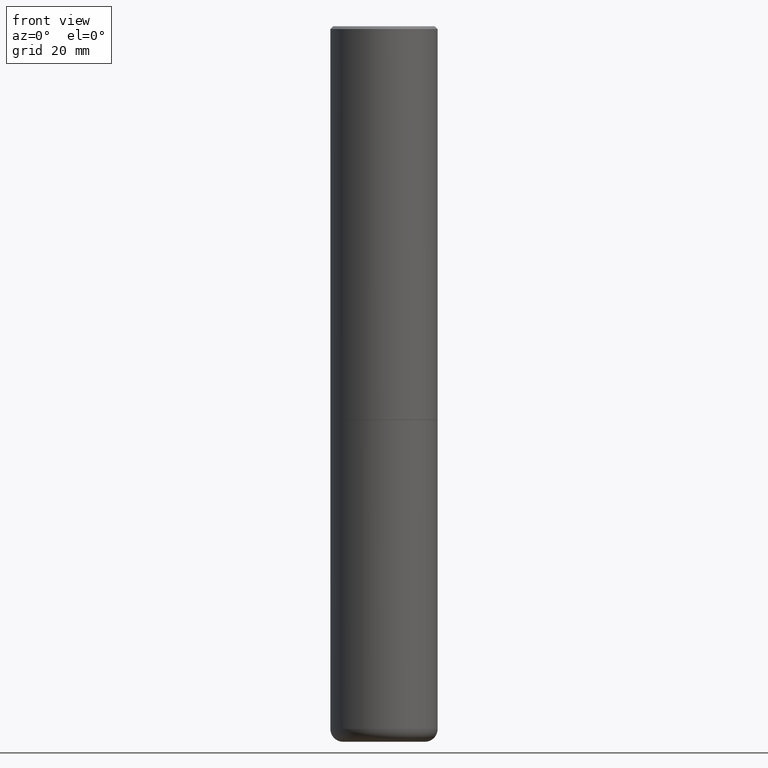
[diagram: clean part render]
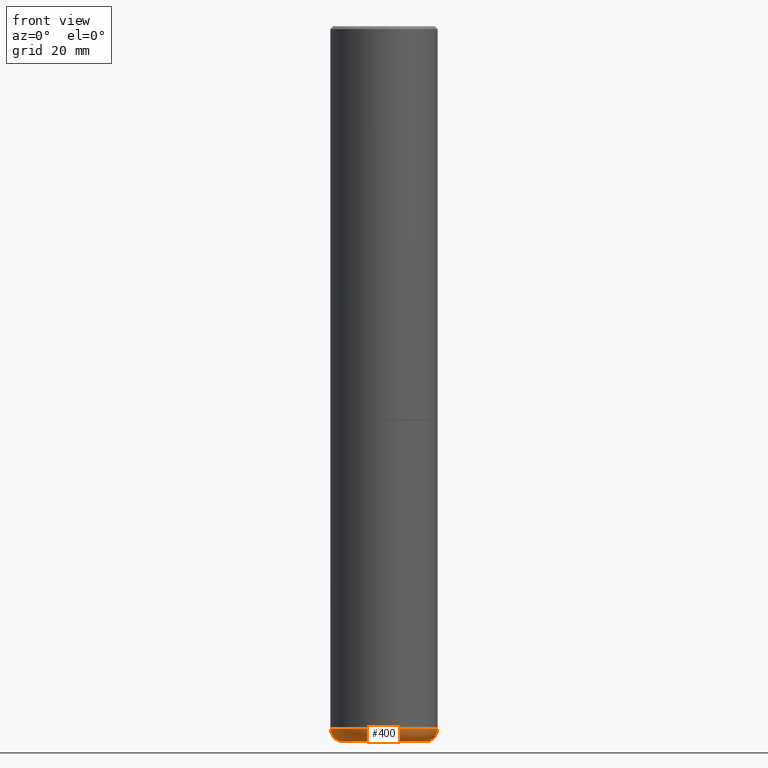
[diagram: same view with one face highlighted and labeled with its STEP entity id]
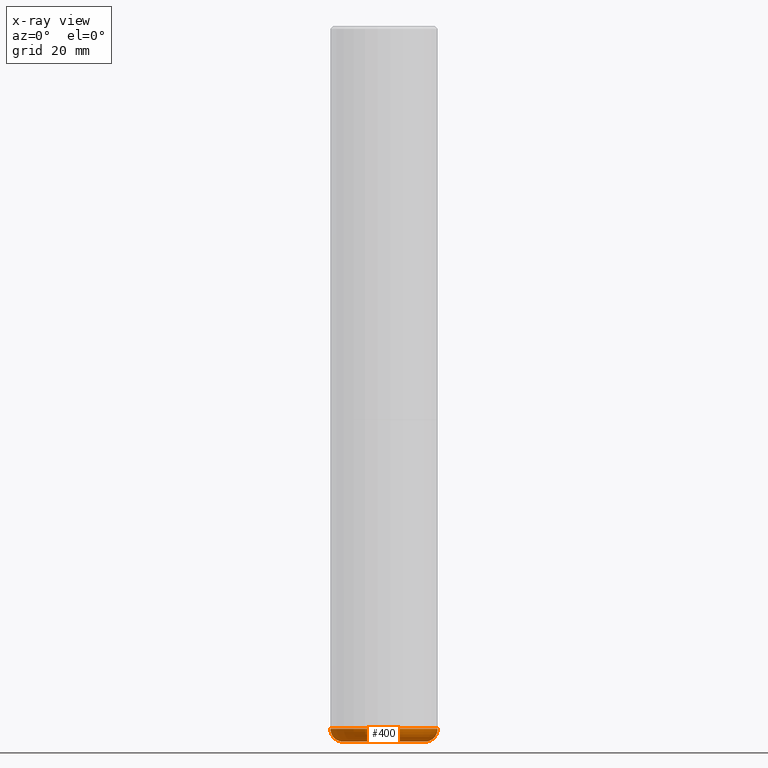
[diagram: x-ray of the same camera — body ghosted, the highlighted face saturated]
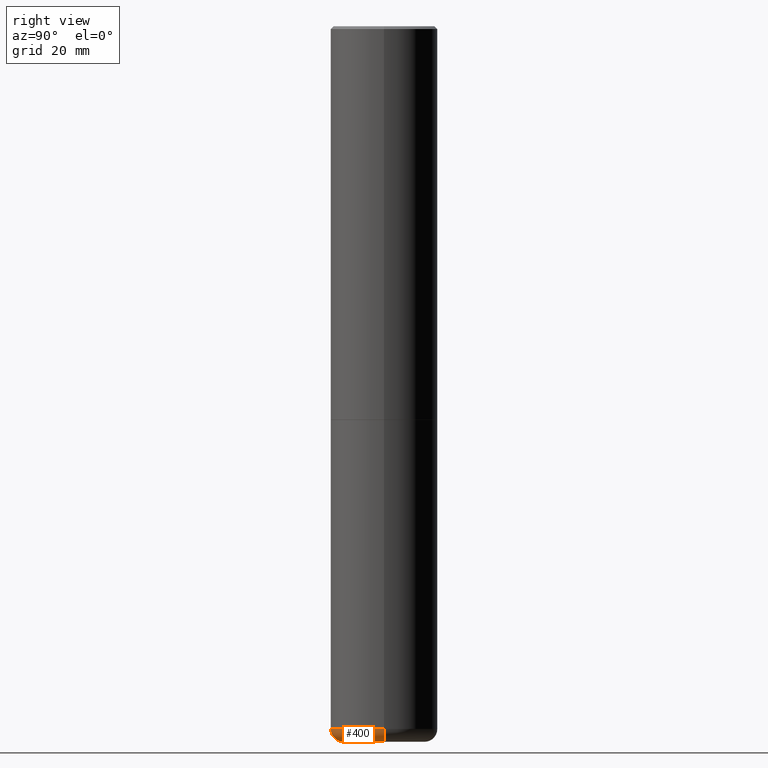
[diagram: same view with one face highlighted and labeled with its STEP entity id]
A machine part, front view. The second image highlights one B-rep face of the part: STEP entity #400.
The next image is the same camera in x-ray: the body ghosted, the highlighted face saturated — about 0% of this face is hidden behind the body in this view.
A second angle (right view) of the same face is appended — the face is thin or edge-on in the first view.
In plain terms, the highlighted toroidal blend (fillet) surface has major radius 7.239 mm and minor (blend) radius 2.286 mm.
Its self-contained STEP definition (entity closure, byte-faithful):
#24 = DIRECTION ( 'NONE',  ( 1.000000000000000000, -6.982962677686265133E-15, 4.883557194083112340E-29 ) ) ;
#52 = ORIENTED_EDGE ( 'NONE', *, *, #126, .F. ) ;
#67 = TOROIDAL_SURFACE ( 'NONE', #372, 0.2850000000000003086, 0.08999999999999984401 ) ;
#82 = DIRECTION ( 'NONE',  ( 7.105427357601001859E-15, 1.000000000000000000, -3.491481338843145583E-15 ) ) ;
#86 = AXIS2_PLACEMENT_3D ( 'NONE', #240, #82, #391 ) ;
#92 = CARTESIAN_POINT ( 'NONE',  ( -0.3750000000000000555, -1.070784425118986345E-14, -4.910003426924224534 ) ) ;
#98 = VERTEX_POINT ( 'NONE', #431 ) ;
#122 = CARTESIAN_POINT ( 'NONE',  ( 0.2850000000000003086, -1.913332970190241034E-14, -4.910003426924224534 ) ) ;
#126 = EDGE_CURVE ( 'NONE', #171, #256, #356, .T. ) ;
#127 = CARTESIAN_POINT ( 'NONE',  ( 1.222734403092568523E-28, -1.745740669421572989E-14, -5.000000000000000000 ) ) ;
#164 = EDGE_CURVE ( 'NONE', #98, #171, #336, .T. ) ;
#166 = DIRECTION ( 'NONE',  ( -2.445468806185136597E-29, 3.491481338843145583E-15, 1.000000000000000000 ) ) ;
#171 = VERTEX_POINT ( 'NONE', #92 ) ;
#175 = CARTESIAN_POINT ( 'NONE',  ( 0.2842146118051471215, -1.944206672090416141E-14, -5.000000000000000000 ) ) ;
#191 = CARTESIAN_POINT ( 'NONE',  ( 0.3750000000000000555, -1.976179634289417687E-14, -4.910003426924224534 ) ) ;
#195 = ORIENTED_EDGE ( 'NONE', *, *, #328, .T. ) ;
#240 = CARTESIAN_POINT ( 'NONE',  ( -0.2850000000000003086, -1.511813854184553716E-14, -4.910003426924224534 ) ) ;
#251 = DIRECTION ( 'NONE',  ( -2.445468806185136597E-29, 3.491481338843145583E-15, 1.000000000000000000 ) ) ;
#256 = VERTEX_POINT ( 'NONE', #191 ) ;
#273 = CIRCLE ( 'NONE', #481, 0.08999999999999985789 ) ;
#282 = DIRECTION ( 'NONE',  ( 1.000000000000000000, -6.982962677686279332E-15, 0.000000000000000000 ) ) ;
#320 = CARTESIAN_POINT ( 'NONE',  ( 1.200726021880531330E-28, -1.714318533876182370E-14, -4.910003426924224534 ) ) ;
#328 = EDGE_CURVE ( 'NONE', #98, #425, #385, .T. ) ;
#331 = EDGE_CURVE ( 'NONE', #425, #256, #273, .T. ) ;
#336 = CIRCLE ( 'NONE', #86, 0.08999999999999985789 ) ;
#356 = CIRCLE ( 'NONE', #474, 0.3750000000000000555 ) ;
#361 = AXIS2_PLACEMENT_3D ( 'NONE', #127, #251, #462 ) ;
#372 = AXIS2_PLACEMENT_3D ( 'NONE', #440, #411, #24 ) ;
#380 = EDGE_LOOP ( 'NONE', ( #443, #195, #445, #52 ) ) ;
#385 = CIRCLE ( 'NONE', #361, 0.2842146118051471215 ) ;
#391 = DIRECTION ( 'NONE',  ( -1.000000000000000000, 7.105427357601001859E-15, 0.000000000000000000 ) ) ;
#400 = ADVANCED_FACE ( 'NONE', ( #477 ), #67, .T. ) ;
#411 = DIRECTION ( 'NONE',  ( -2.445468806185136597E-29, 3.491481338843145583E-15, 1.000000000000000000 ) ) ;
#425 = VERTEX_POINT ( 'NONE', #175 ) ;
#431 = CARTESIAN_POINT ( 'NONE',  ( -0.2842146118051471215, -1.495829524786346745E-14, -5.000000000000000000 ) ) ;
#433 = DIRECTION ( 'NONE',  ( -6.982962677686266711E-15, -1.000000000000000000, 3.491481338843145583E-15 ) ) ;
#440 = CARTESIAN_POINT ( 'NONE',  ( 1.200726021880531330E-28, -1.714318533876182370E-14, -4.910003426924224534 ) ) ;
#443 = ORIENTED_EDGE ( 'NONE', *, *, #164, .F. ) ;
#445 = ORIENTED_EDGE ( 'NONE', *, *, #331, .T. ) ;
#462 = DIRECTION ( 'NONE',  ( 1.000000000000000000, -6.982962677686260400E-15, 0.000000000000000000 ) ) ;
#468 = DIRECTION ( 'NONE',  ( 1.000000000000000000, -6.982962677686266711E-15, 0.000000000000000000 ) ) ;
#474 = AXIS2_PLACEMENT_3D ( 'NONE', #320, #166, #468 ) ;
#477 = FACE_OUTER_BOUND ( 'NONE', #380, .T. ) ;
#481 = AXIS2_PLACEMENT_3D ( 'NONE', #122, #433, #282 ) ;